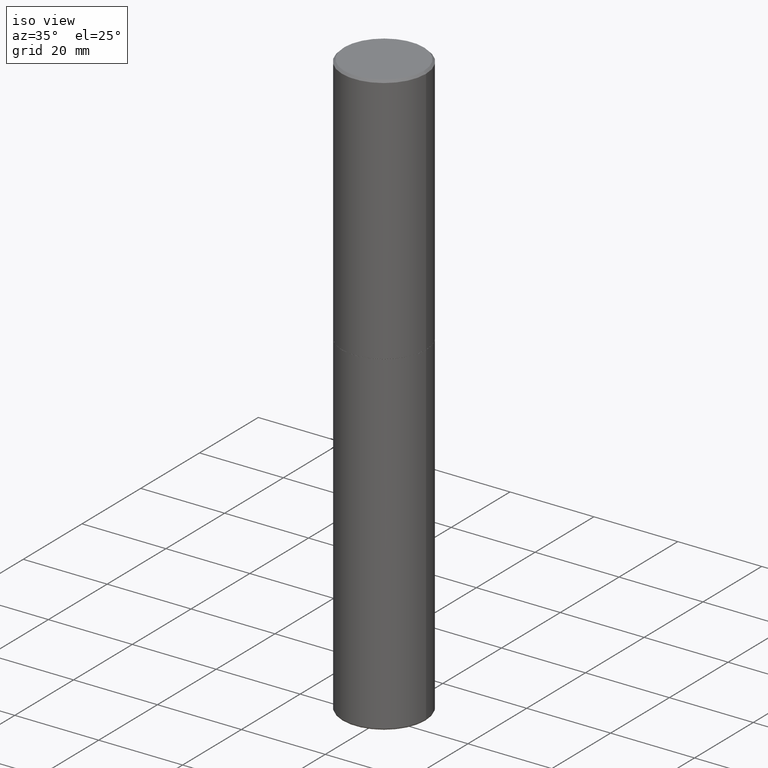
[diagram: clean part render]
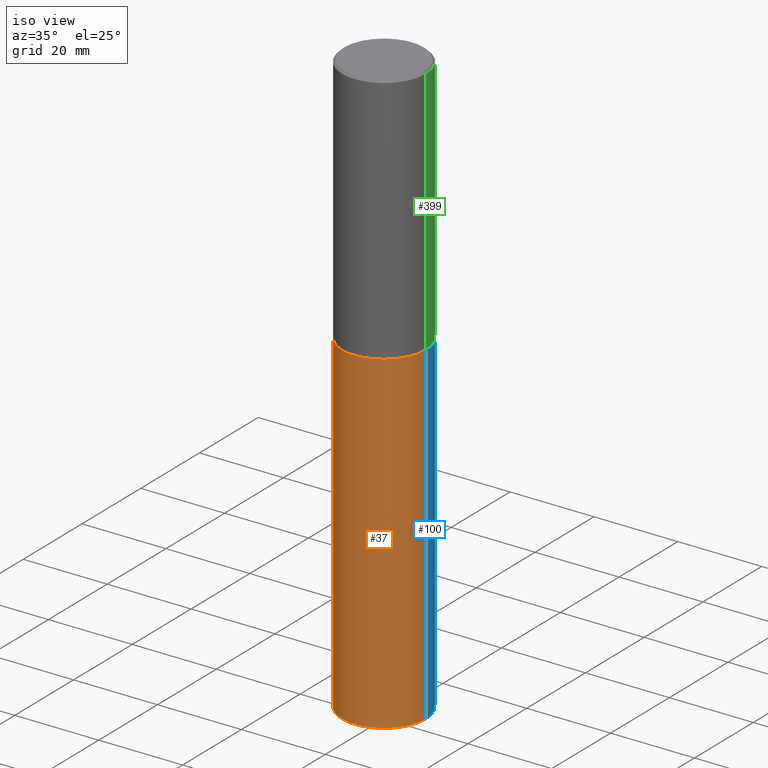
[diagram: same view with three faces highlighted in distinct colors, each labeled with its STEP entity id]
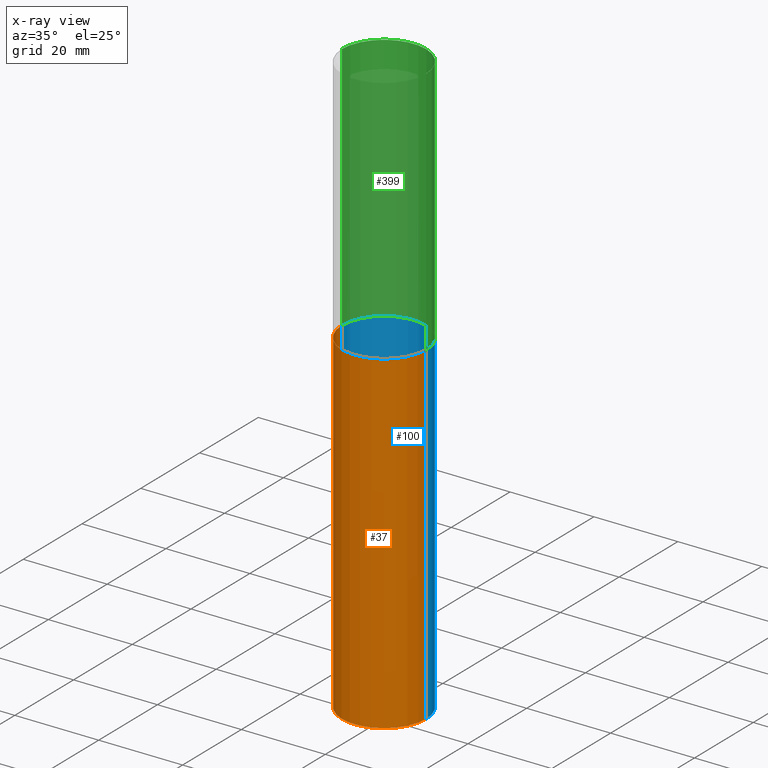
[diagram: x-ray of the same camera — body ghosted, the three highlighted faces saturated]
A machine part, iso view with three faces highlighted in distinct colors.
The next image is the same camera in x-ray (body ghosted, the three faces saturated) — at least one of them is partly hidden behind the body in this view.
Their STEP definitions:

[orange] entity #37 — the highlighted cylindrical surface (partial cylindrical patch) has radius 10 mm, axis along (-0, 0, 1).
#1 = DIRECTION ( 'NONE',  ( -2.445468806185136877E-29, 3.491481338843145188E-15, 1.000000000000000000 ) ) ;
#11 = EDGE_CURVE ( 'NONE', #120, #148, #275, .T. ) ;
#23 = EDGE_LOOP ( 'NONE', ( #172, #56, #80, #181 ) ) ;
#26 = CARTESIAN_POINT ( 'NONE',  ( 0.000000000000000000, 0.000000000000000000, 0.000000000000000000 ) ) ;
#37 = ADVANCED_FACE ( 'NONE', ( #316 ), #254, .T. ) ;
#39 = CARTESIAN_POINT ( 'NONE',  ( -0.3936999999999999389, 2.797406750687513998E-15, -1.936584745033356455E-29 ) ) ;
#45 = VERTEX_POINT ( 'NONE', #159 ) ;
#56 = ORIENTED_EDGE ( 'NONE', *, *, #158, .T. ) ;
#59 = VECTOR ( 'NONE', #328, 39.37007874015748143 ) ;
#80 = ORIENTED_EDGE ( 'NONE', *, *, #11, .T. ) ;
#90 = CARTESIAN_POINT ( 'NONE',  ( 0.3936999999999999389, -2.192475706726552397E-14, -5.492099999999999760 ) ) ;
#97 = DIRECTION ( 'NONE',  ( -2.445468806185136597E-29, 3.491481338843145583E-15, 1.000000000000000000 ) ) ;
#120 = VERTEX_POINT ( 'NONE', #90 ) ;
#136 = CARTESIAN_POINT ( 'NONE',  ( -0.3936999999999999389, -1.637815791037292360E-14, -5.492099999999999760 ) ) ;
#145 = CIRCLE ( 'NONE', #256, 0.3937000000000000499 ) ;
#148 = VERTEX_POINT ( 'NONE', #285 ) ;
#158 = EDGE_CURVE ( 'NONE', #273, #120, #160, .T. ) ;
#159 = CARTESIAN_POINT ( 'NONE',  ( -0.3937000000000000499, -1.091416418915034540E-14, -2.362200000000000077 ) ) ;
#160 = CIRCLE ( 'NONE', #364, 0.3936999999999999389 ) ;
#172 = ORIENTED_EDGE ( 'NONE', *, *, #269, .F. ) ;
#174 = EDGE_CURVE ( 'NONE', #45, #148, #145, .T. ) ;
#181 = ORIENTED_EDGE ( 'NONE', *, *, #174, .F. ) ;
#184 = DIRECTION ( 'NONE',  ( -2.445468806185136597E-29, 3.491481338843145583E-15, 1.000000000000000000 ) ) ;
#189 = DIRECTION ( 'NONE',  ( 1.000000000000000000, -6.982962677686267499E-15, 0.000000000000000000 ) ) ;
#214 = AXIS2_PLACEMENT_3D ( 'NONE', #26, #97, #417 ) ;
#215 = CARTESIAN_POINT ( 'NONE',  ( 5.776686413970529753E-29, -8.247577218615279626E-15, -2.362200000000000077 ) ) ;
#235 = VECTOR ( 'NONE', #1, 39.37007874015748143 ) ;
#247 = DIRECTION ( 'NONE',  ( -2.445468806185136597E-29, 3.491481338843145583E-15, 1.000000000000000000 ) ) ;
#254 = CYLINDRICAL_SURFACE ( 'NONE', #214, 0.3936999999999999389 ) ;
#256 = AXIS2_PLACEMENT_3D ( 'NONE', #215, #247, #189 ) ;
#269 = EDGE_CURVE ( 'NONE', #273, #45, #355, .T. ) ;
#273 = VERTEX_POINT ( 'NONE', #136 ) ;
#275 = LINE ( 'NONE', #406, #235 ) ;
#285 = CARTESIAN_POINT ( 'NONE',  ( 0.3937000000000000499, -1.099676962482036284E-14, -2.362200000000000077 ) ) ;
#315 = DIRECTION ( 'NONE',  ( 1.000000000000000000, -6.982962677686269866E-15, 0.000000000000000000 ) ) ;
#316 = FACE_OUTER_BOUND ( 'NONE', #23, .T. ) ;
#328 = DIRECTION ( 'NONE',  ( -2.445468806185136877E-29, 3.491481338843145188E-15, 1.000000000000000000 ) ) ;
#355 = LINE ( 'NONE', #39, #59 ) ;
#364 = AXIS2_PLACEMENT_3D ( 'NONE', #379, #184, #315 ) ;
#379 = CARTESIAN_POINT ( 'NONE',  ( 1.343075923044938861E-28, -1.917556466106043760E-14, -5.492099999999999760 ) ) ;
#406 = CARTESIAN_POINT ( 'NONE',  ( 0.3936999999999999389, -2.749192406205082822E-15, 1.919750796630859611E-29 ) ) ;
#417 = DIRECTION ( 'NONE',  ( 1.000000000000000000, -6.982962677686266711E-15, 4.876176775795935793E-29 ) ) ;

[blue] entity #100 — the highlighted cylindrical surface (partial cylindrical patch) has radius 10 mm, axis along (-0, 0, 1).
#1 = DIRECTION ( 'NONE',  ( -2.445468806185136877E-29, 3.491481338843145188E-15, 1.000000000000000000 ) ) ;
#11 = EDGE_CURVE ( 'NONE', #120, #148, #275, .T. ) ;
#39 = CARTESIAN_POINT ( 'NONE',  ( -0.3936999999999999389, 2.797406750687513998E-15, -1.936584745033356455E-29 ) ) ;
#45 = VERTEX_POINT ( 'NONE', #159 ) ;
#59 = VECTOR ( 'NONE', #328, 39.37007874015748143 ) ;
#60 = CIRCLE ( 'NONE', #416, 0.3937000000000000499 ) ;
#61 = FACE_OUTER_BOUND ( 'NONE', #150, .T. ) ;
#64 = DIRECTION ( 'NONE',  ( 1.000000000000000000, -6.982962677686269866E-15, 0.000000000000000000 ) ) ;
#90 = CARTESIAN_POINT ( 'NONE',  ( 0.3936999999999999389, -2.192475706726552397E-14, -5.492099999999999760 ) ) ;
#100 = ADVANCED_FACE ( 'NONE', ( #61 ), #352, .T. ) ;
#108 = ORIENTED_EDGE ( 'NONE', *, *, #115, .T. ) ;
#114 = DIRECTION ( 'NONE',  ( 1.000000000000000000, -6.982962677686267499E-15, 0.000000000000000000 ) ) ;
#115 = EDGE_CURVE ( 'NONE', #120, #273, #242, .T. ) ;
#120 = VERTEX_POINT ( 'NONE', #90 ) ;
#136 = CARTESIAN_POINT ( 'NONE',  ( -0.3936999999999999389, -1.637815791037292360E-14, -5.492099999999999760 ) ) ;
#148 = VERTEX_POINT ( 'NONE', #285 ) ;
#150 = EDGE_LOOP ( 'NONE', ( #108, #268, #232, #212 ) ) ;
#157 = DIRECTION ( 'NONE',  ( -2.445468806185136597E-29, 3.491481338843145583E-15, 1.000000000000000000 ) ) ;
#159 = CARTESIAN_POINT ( 'NONE',  ( -0.3937000000000000499, -1.091416418915034540E-14, -2.362200000000000077 ) ) ;
#161 = DIRECTION ( 'NONE',  ( 1.000000000000000000, -6.982962677686266711E-15, 4.876176775795935793E-29 ) ) ;
#212 = ORIENTED_EDGE ( 'NONE', *, *, #11, .F. ) ;
#228 = AXIS2_PLACEMENT_3D ( 'NONE', #412, #290, #64 ) ;
#232 = ORIENTED_EDGE ( 'NONE', *, *, #418, .F. ) ;
#235 = VECTOR ( 'NONE', #1, 39.37007874015748143 ) ;
#242 = CIRCLE ( 'NONE', #228, 0.3936999999999999389 ) ;
#268 = ORIENTED_EDGE ( 'NONE', *, *, #269, .T. ) ;
#269 = EDGE_CURVE ( 'NONE', #273, #45, #355, .T. ) ;
#273 = VERTEX_POINT ( 'NONE', #136 ) ;
#275 = LINE ( 'NONE', #406, #235 ) ;
#281 = CARTESIAN_POINT ( 'NONE',  ( 0.000000000000000000, 0.000000000000000000, 0.000000000000000000 ) ) ;
#285 = CARTESIAN_POINT ( 'NONE',  ( 0.3937000000000000499, -1.099676962482036284E-14, -2.362200000000000077 ) ) ;
#290 = DIRECTION ( 'NONE',  ( -2.445468806185136597E-29, 3.491481338843145583E-15, 1.000000000000000000 ) ) ;
#328 = DIRECTION ( 'NONE',  ( -2.445468806185136877E-29, 3.491481338843145188E-15, 1.000000000000000000 ) ) ;
#352 = CYLINDRICAL_SURFACE ( 'NONE', #387, 0.3936999999999999389 ) ;
#355 = LINE ( 'NONE', #39, #59 ) ;
#368 = CARTESIAN_POINT ( 'NONE',  ( 5.776686413970529753E-29, -8.247577218615279626E-15, -2.362200000000000077 ) ) ;
#387 = AXIS2_PLACEMENT_3D ( 'NONE', #281, #157, #161 ) ;
#402 = DIRECTION ( 'NONE',  ( -2.445468806185136597E-29, 3.491481338843145583E-15, 1.000000000000000000 ) ) ;
#406 = CARTESIAN_POINT ( 'NONE',  ( 0.3936999999999999389, -2.749192406205082822E-15, 1.919750796630859611E-29 ) ) ;
#412 = CARTESIAN_POINT ( 'NONE',  ( 1.343075923044938861E-28, -1.917556466106043760E-14, -5.492099999999999760 ) ) ;
#416 = AXIS2_PLACEMENT_3D ( 'NONE', #368, #402, #114 ) ;
#418 = EDGE_CURVE ( 'NONE', #148, #45, #60, .T. ) ;

[green] entity #399 — the highlighted cylindrical surface (partial cylindrical patch) has radius 10 mm, axis along (-0, 0, 1).
#5 = CARTESIAN_POINT ( 'NONE',  ( 0.3937000000000001609, -2.749192406205084400E-15, 1.919750796630860732E-29 ) ) ;
#9 = CARTESIAN_POINT ( 'NONE',  ( -0.3937000000000000499, 2.679362779428219918E-15, -0.02000000000000008715 ) ) ;
#17 = VERTEX_POINT ( 'NONE', #130 ) ;
#32 = DIRECTION ( 'NONE',  ( -2.445468806185136597E-29, 3.491481338843145583E-15, 1.000000000000000000 ) ) ;
#47 = DIRECTION ( 'NONE',  ( 1.000000000000000000, -6.982962677686266711E-15, 4.876176775795935793E-29 ) ) ;
#65 = AXIS2_PLACEMENT_3D ( 'NONE', #297, #257, #200 ) ;
#86 = ORIENTED_EDGE ( 'NONE', *, *, #266, .F. ) ;
#88 = DIRECTION ( 'NONE',  ( -2.445468806185136877E-29, 3.491481338843145188E-15, 1.000000000000000000 ) ) ;
#98 = VECTOR ( 'NONE', #88, 39.37007874015748143 ) ;
#130 = CARTESIAN_POINT ( 'NONE',  ( -0.3937000000000003830, -1.359550931339130834E-15, -2.361199999999999743 ) ) ;
#138 = AXIS2_PLACEMENT_3D ( 'NONE', #201, #32, #194 ) ;
#146 = EDGE_CURVE ( 'NONE', #17, #207, #248, .T. ) ;
#151 = CARTESIAN_POINT ( 'NONE',  ( 0.000000000000000000, 0.000000000000000000, 0.000000000000000000 ) ) ;
#168 = LINE ( 'NONE', #5, #307 ) ;
#173 = EDGE_LOOP ( 'NONE', ( #180, #178, #367, #86 ) ) ;
#178 = ORIENTED_EDGE ( 'NONE', *, *, #146, .T. ) ;
#180 = ORIENTED_EDGE ( 'NONE', *, *, #282, .T. ) ;
#192 = CARTESIAN_POINT ( 'NONE',  ( -0.3937000000000001609, 2.797406750687515575E-15, -1.936584745033357296E-29 ) ) ;
#194 = DIRECTION ( 'NONE',  ( 1.000000000000000000, -6.982962677686265922E-15, 0.000000000000000000 ) ) ;
#195 = DIRECTION ( 'NONE',  ( -2.445468806185136877E-29, 3.491481338843145188E-15, 1.000000000000000000 ) ) ;
#197 = CIRCLE ( 'NONE', #138, 0.3937000000000000499 ) ;
#200 = DIRECTION ( 'NONE',  ( 1.000000000000000000, -6.982962677686265922E-15, 0.000000000000000000 ) ) ;
#201 = CARTESIAN_POINT ( 'NONE',  ( 4.890937612370294178E-31, -6.982962677686321191E-17, -0.02000000000000008715 ) ) ;
#206 = CYLINDRICAL_SURFACE ( 'NONE', #373, 0.3937000000000001609 ) ;
#207 = VERTEX_POINT ( 'NONE', #9 ) ;
#240 = FACE_OUTER_BOUND ( 'NONE', #173, .T. ) ;
#248 = LINE ( 'NONE', #192, #98 ) ;
#257 = DIRECTION ( 'NONE',  ( -2.445468806185136597E-29, 3.491481338843145583E-15, 1.000000000000000000 ) ) ;
#266 = EDGE_CURVE ( 'NONE', #270, #404, #168, .T. ) ;
#270 = VERTEX_POINT ( 'NONE', #359 ) ;
#272 = CARTESIAN_POINT ( 'NONE',  ( 0.3937000000000000499, -2.770807688499515734E-15, -0.02000000000000008715 ) ) ;
#276 = DIRECTION ( 'NONE',  ( -2.445468806185136597E-29, 3.491481338843145583E-15, 1.000000000000000000 ) ) ;
#282 = EDGE_CURVE ( 'NONE', #270, #17, #358, .T. ) ;
#297 = CARTESIAN_POINT ( 'NONE',  ( 5.774240945164344150E-29, -8.244085737276435042E-15, -2.361199999999999743 ) ) ;
#307 = VECTOR ( 'NONE', #195, 39.37007874015748143 ) ;
#358 = CIRCLE ( 'NONE', #65, 0.3937000000000002720 ) ;
#359 = CARTESIAN_POINT ( 'NONE',  ( 0.3937000000000002720, -1.099327814348151984E-14, -2.361199999999999743 ) ) ;
#367 = ORIENTED_EDGE ( 'NONE', *, *, #374, .F. ) ;
#373 = AXIS2_PLACEMENT_3D ( 'NONE', #151, #276, #47 ) ;
#374 = EDGE_CURVE ( 'NONE', #404, #207, #197, .T. ) ;
#399 = ADVANCED_FACE ( 'NONE', ( #240 ), #206, .T. ) ;
#404 = VERTEX_POINT ( 'NONE', #272 ) ;